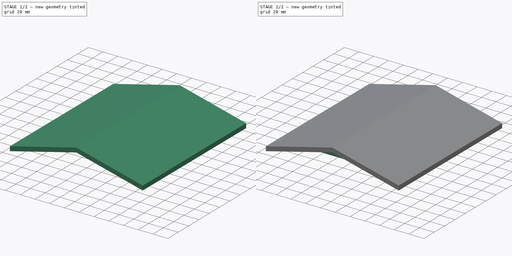
[diagram: build sequence overview — one tinted view per stage of 2, left to right]
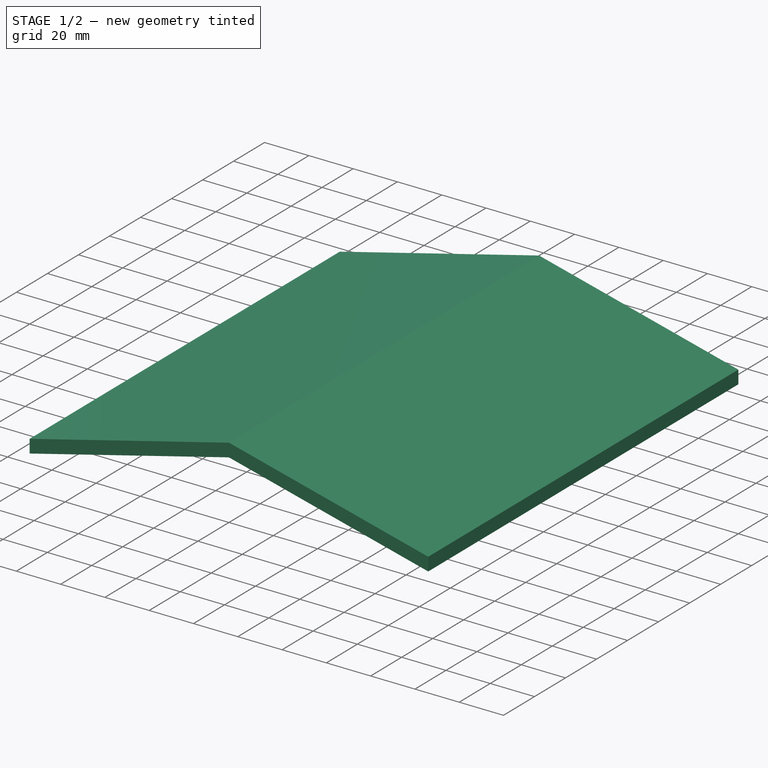
[diagram: stage 1 of 2 — iso view after this stage's code; geometry added in this stage tinted green]
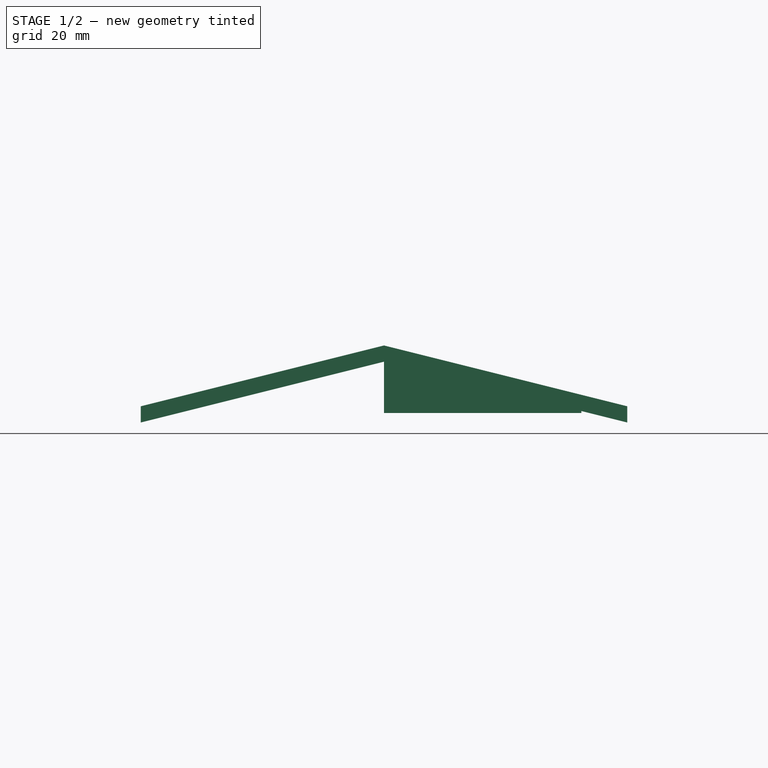
[diagram: stage 1 of 2 — front view after this stage's code; geometry added in this stage tinted green]
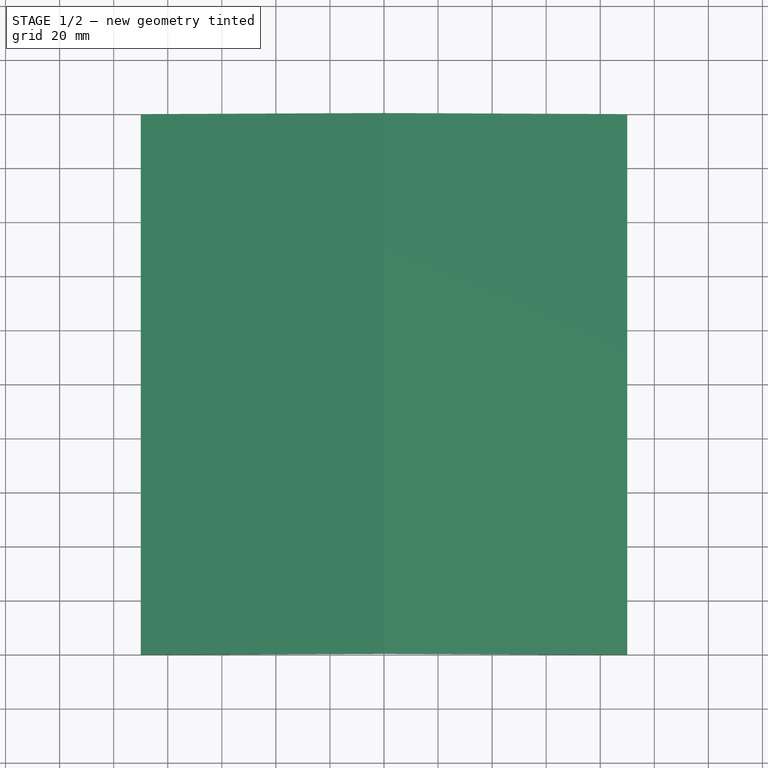
[diagram: stage 1 of 2 — top view after this stage's code; geometry added in this stage tinted green]
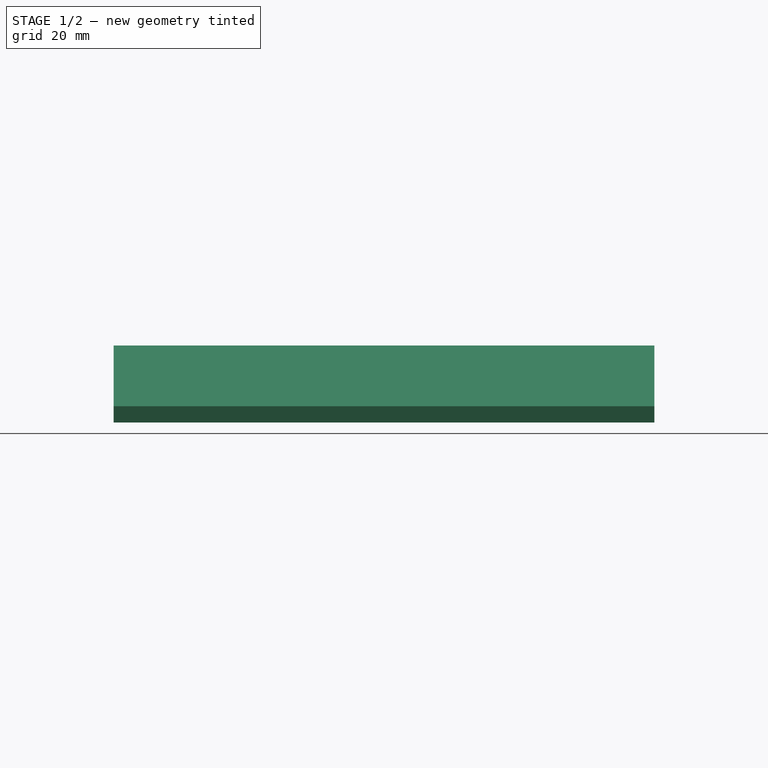
[diagram: stage 1 of 2 — right view after this stage's code; geometry added in this stage tinted green]
FCSTD DOCUMENT  (FreeCAD 0.20R29177 +426 (Git))
Label: roof
License: All rights reserved
LicenseURL: http://en.wikipedia.org/wiki/All_rights_reserved
objects: Sketcher::SketchObject×3, PartDesign::Pad×2, PartDesign::CoordinateSystem×2, PartDesign::Mirrored×1, PartDesign::Body×1, App::Part×1
note: 11 computed .brp shape members not serialized (recipe doc carries the construction recipe); baked Part::Feature solids carry a one-line shape summary decoded from their .brp

FEATURE [Sketcher::SketchObject] Sketch
  FullyConstrained = true
  MapMode = 5
  Support = -> [XY_Plane]
  sketch-geometry (12):
    g0: LineSegment StartX=-73 StartY=7 StartZ=0 EndX=73 EndY=7 EndZ=0
    g1: LineSegment StartX=73 StartY=7 StartZ=0 EndX=73 EndY=153 EndZ=0
    g2: LineSegment StartX=73 StartY=153 StartZ=0 EndX=-73 EndY=153 EndZ=0
    g3: LineSegment StartX=-73 StartY=153 StartZ=0 EndX=-73 EndY=7 EndZ=0
    g4: LineSegment StartX=-69 StartY=11 StartZ=0 EndX=69 EndY=11 EndZ=0
    g5: LineSegment StartX=69 StartY=11 StartZ=0 EndX=69 EndY=149 EndZ=0
    g6: LineSegment StartX=69 StartY=149 StartZ=0 EndX=-69 EndY=149 EndZ=0
    g7: LineSegment StartX=-69 StartY=149 StartZ=0 EndX=-69 EndY=11 EndZ=0
    g8: LineSegment StartX=-69 StartY=11 StartZ=0 EndX=-73 EndY=11 EndZ=0
    g9: LineSegment StartX=-69 StartY=11 StartZ=0 EndX=-69 EndY=7 EndZ=0
    g10: LineSegment StartX=69 StartY=149 StartZ=0 EndX=69 EndY=153 EndZ=0
    g11: LineSegment StartX=69 StartY=149 StartZ=0 EndX=73 EndY=149 EndZ=0
  constraints (35):
    c: Coincident(g0,g1)
    c: Coincident(g2,g3)
    c: Horizontal(g2)
    c: Vertical(g1)
    c: Vertical(g3)
    c: Coincident(g4,g5)
    c: Coincident(g5,g6)
    c: Coincident(g6,g7)
    c: Coincident(g7,g4)
    c: Horizontal(g4)
    c: Horizontal(g6)
    c: Vertical(g5)
    c: Vertical(g7)
    c: Coincident(g8,g4)
    c: Horizontal(g8)
    c: Coincident(g9,g4)
    c: PointOnObject(g9,g0)
    c: PointOnObject(g8,g3)
    c: Vertical(g9)
    c: Coincident(g10,g5)
    c: PointOnObject(g10,g2)
    c: Vertical(g10)
    c: Coincident(g11,g5)
    c: PointOnObject(g11,g1)
    c: Horizontal(g11)
    c: Equal(g11,g10)
    c: Equal(g10,g9)
    c: Equal(g9,g8)
    c: DistanceX(g11,g11) = 4
    c: DistanceX(g2,g2) = 146
    c: Equal(g2,g3)
    c: Coincident(g0,g3)
    c: Coincident(g1,g2)
    c: Symmetric(g0,g0,g-2)
    c: DistanceY(g-1,g0) = 7
FEATURE [Sketcher::SketchObject] Sketch001
  AttachmentOffset = pos=(0,0,20) rot=(0,0,1;0rad)
  FullyConstrained = true
  MapMode = 5
  Placement = pos=(0,-20,-4.4e-15) rot=(1,0,0;1.5708rad)
  Support = -> [XZ_Plane]
  sketch-geometry (6):
    g0: LineSegment StartX=0 StartY=25 StartZ=0 EndX=-90 EndY=2.50041 EndZ=0
    g1: LineSegment StartX=0 StartY=25 StartZ=0 EndX=90 EndY=2.50041 EndZ=0
    g2: LineSegment StartX=90 StartY=2.50041 StartZ=0 EndX=90 EndY=-3.49959 EndZ=0
    g3: LineSegment StartX=90 StartY=-3.49959 StartZ=0 EndX=0 EndY=19 EndZ=0
    g4: LineSegment StartX=0 StartY=19 StartZ=0 EndX=-90 EndY=-3.49959 EndZ=0
    g5: LineSegment StartX=-90 StartY=-3.49959 StartZ=0 EndX=-90 EndY=2.50041 EndZ=0
  constraints (17):
    c: PointOnObject(g0,g-2)
    c: Coincident(g1,g0)
    c: Coincident(g2,g1)
    c: Coincident(g3,g2)
    c: PointOnObject(g3,g-2)
    c: Coincident(g4,g3)
    c: Coincident(g5,g4)
    c: Coincident(g5,g0)
    c: Parallel(g4,g0)
    c: Parallel(g3,g1)
    c: Equal(g3,g1)
    c: Equal(g4,g0)
    c: Symmetric(g4,g2,g-2)
    c: DistanceX(g4,g2) = 180
    c: DistanceY(g2,g2) = 6
    c: Angle(g-1,g0) = 0.244974
    c: DistanceY(g-1,g3) = 19
FEATURE [PartDesign::Pad] Pad
  Direction = (0,-1,2e-16)
  Length = 200
  Length2 = 10
  Placement = pos=(0,0,0) rot=(1,0,0;1.5708rad)
  Profile = -> Sketch001
  ReferenceAxis = -> Sketch001 [N_Axis]
  Reversed = true
  Type = 0
FEATURE [Sketcher::SketchObject] Sketch002
  FullyConstrained = true
  MapMode = 5
  Support = -> [XY_Plane]
  sketch-geometry (9):
    g0: LineSegment StartX=0 StartY=7 StartZ=0 EndX=73 EndY=7 EndZ=0
    g1: LineSegment StartX=73 StartY=7 StartZ=0 EndX=73 EndY=153 EndZ=0
    g2: LineSegment StartX=73 StartY=153 StartZ=0 EndX=0 EndY=153 EndZ=0
    g3: LineSegment StartX=0 StartY=11 StartZ=0 EndX=69 EndY=11 EndZ=0
    g4: LineSegment StartX=69 StartY=11 StartZ=0 EndX=69 EndY=149 EndZ=0
    g5: LineSegment StartX=69 StartY=149 StartZ=0 EndX=0 EndY=149 EndZ=0
    g6: LineSegment StartX=69 StartY=149 StartZ=0 EndX=73 EndY=149 EndZ=0
    g7: LineSegment StartX=0 StartY=149 StartZ=0 EndX=0 EndY=153 EndZ=0
    g8: LineSegment StartX=0 StartY=11 StartZ=0 EndX=0 EndY=7 EndZ=0
  constraints (27):
    c: Coincident(g0,g1)
    c: Horizontal(g2)
    c: Vertical(g1)
    c: Coincident(g3,g4)
    c: Coincident(g4,g5)
    c: Horizontal(g3)
    c: Horizontal(g5)
    c: Vertical(g4)
    c: Coincident(g6,g4)
    c: PointOnObject(g6,g1)
    c: Horizontal(g6)
    c: Coincident(g1,g2)
    c: Coincident(g7,g5)
    c: Coincident(g7,g2)
    c: Coincident(g8,g3)
    c: Coincident(g8,g0)
    c: Vertical(g8)
    c: Vertical(g7)
    c: Vertical(g7,g3)
    c: Equal(g6,g7)
    c: Equal(g7,g8)
    c: DistanceX(g6,g6) = 4
    c: DistanceY(g-1,g0) = 7
    c: PointOnObject(g0,g-2)
    c: DistanceX(g2,g2) = 73
    c: Horizontal(g0)
    c: DistanceY(g1,g1) = 146
FEATURE [PartDesign::Pad] Pad001
  BaseFeature = -> Pad
  Direction = (0,0,1)
  Length = 10
  Length2 = 10
  Placement = pos=(0,0,0) rot=(1,0,0;1.5708rad)
  Profile = -> Sketch002
  ReferenceAxis = -> Sketch002 [N_Axis]
  Type = 2
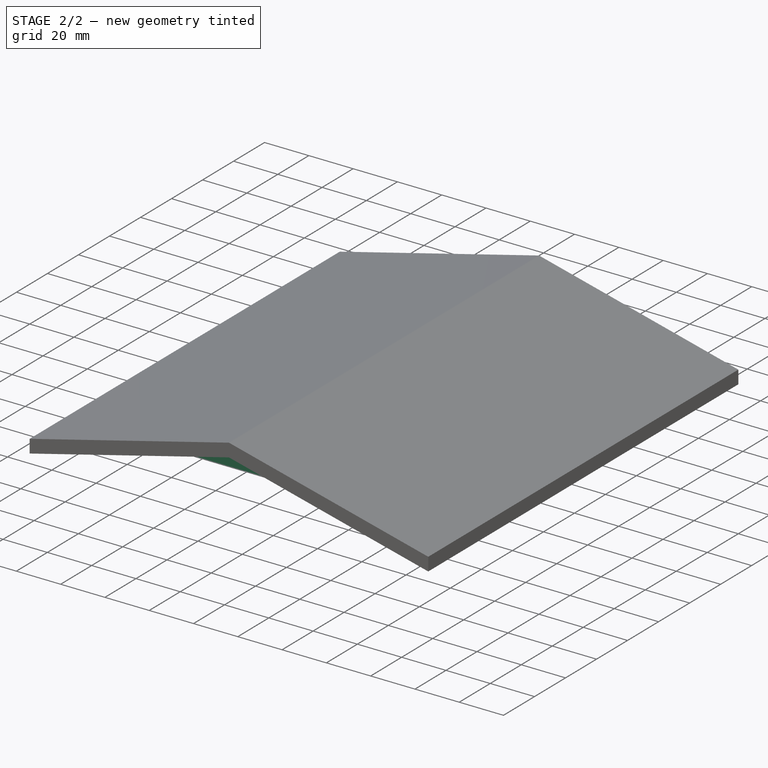
[diagram: stage 2 of 2 — iso view after this stage's code; geometry added in this stage tinted green]
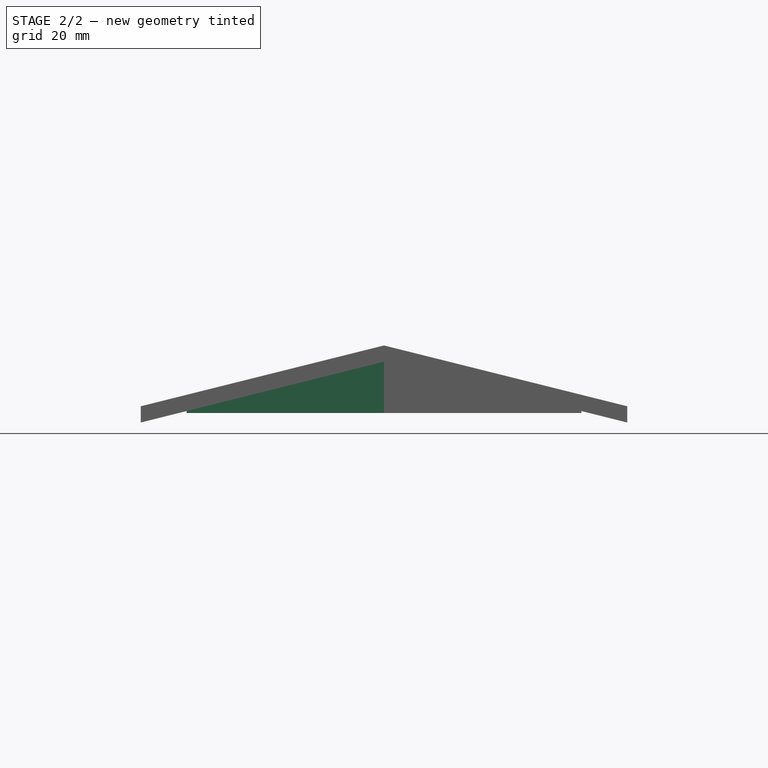
[diagram: stage 2 of 2 — front view after this stage's code; geometry added in this stage tinted green]
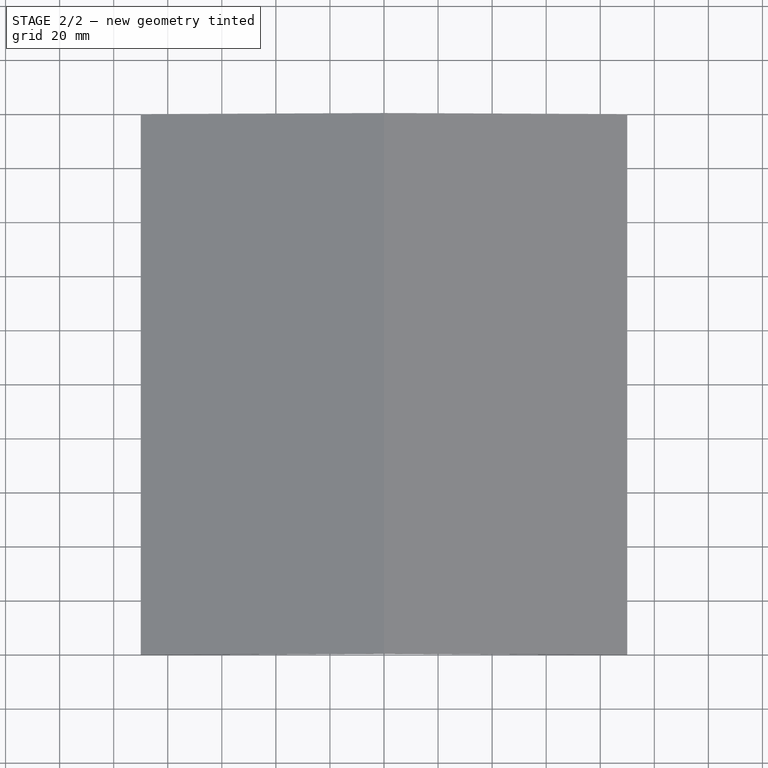
[diagram: stage 2 of 2 — top view after this stage's code; geometry added in this stage tinted green]
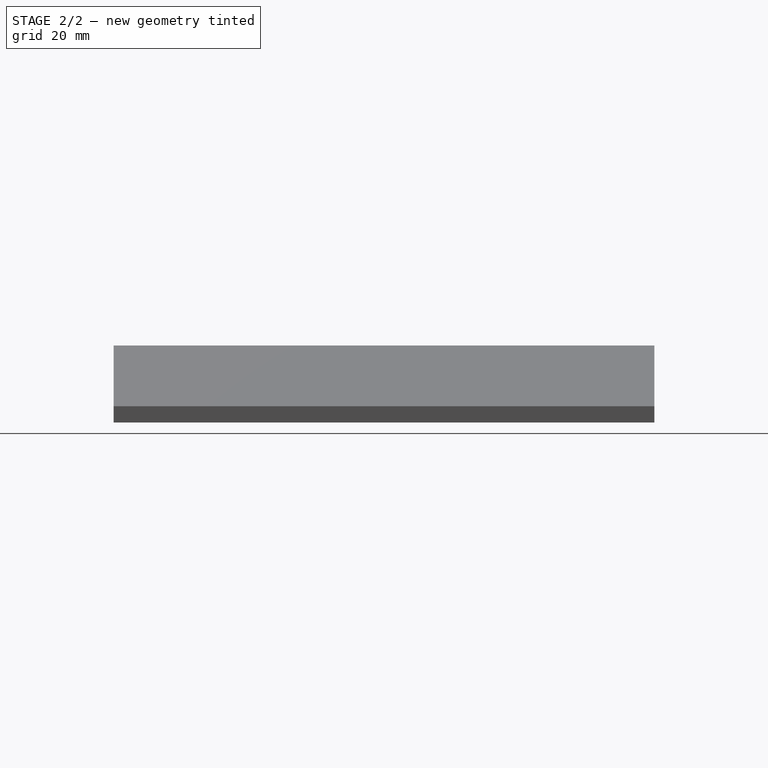
[diagram: stage 2 of 2 — right view after this stage's code; geometry added in this stage tinted green]
FEATURE [PartDesign::Mirrored] Mirrored
  BaseFeature = -> Pad001
  MirrorPlane = -> Sketch002 [V_Axis]
  Originals = -> [Pad001]
  Placement = pos=(0,0,0) rot=(1,0,0;1.5708rad)
FEATURE [PartDesign::Body] Body
  Group = -> [Sketch,Sketch001,Pad,Sketch002,Pad001,Mirrored]
  Origin = -> Origin
  Tip = -> Mirrored
FEATURE [PartDesign::CoordinateSystem] LCS_0
  AttacherType = Attacher::AttachEngine3D
  MapMode = 2
  Support = -> [X_Axis001]
FEATURE [PartDesign::CoordinateSystem] LCS_1
  AttacherType = Attacher::AttachEngine3D
  MapMode = 1
  Placement = pos=(0,7,19) rot=(0,0,1;0rad)
  Support = -> [Mirrored]
FEATURE [App::Part] roof
  Group = -> [LCS_0,Body,LCS_1]
  Origin = -> Origin001
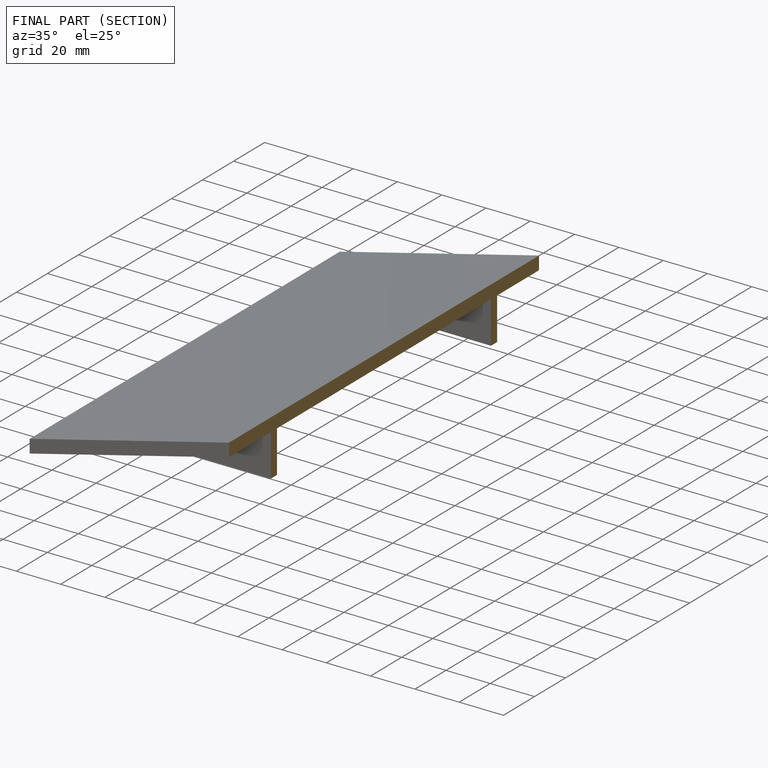
[diagram: finished part — half-section view (interior)]
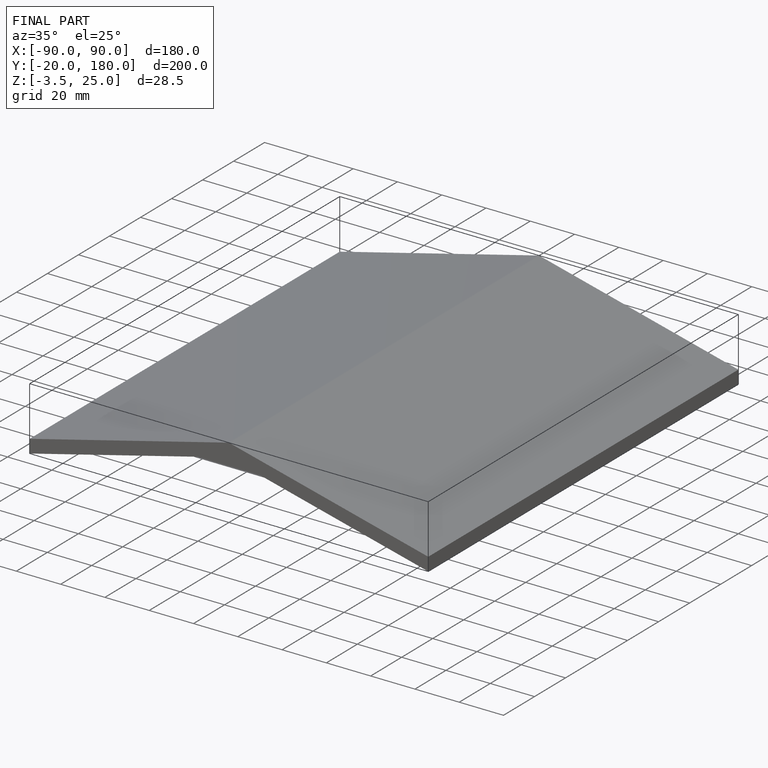
[diagram: finished part — iso view with bounding-box wireframe]
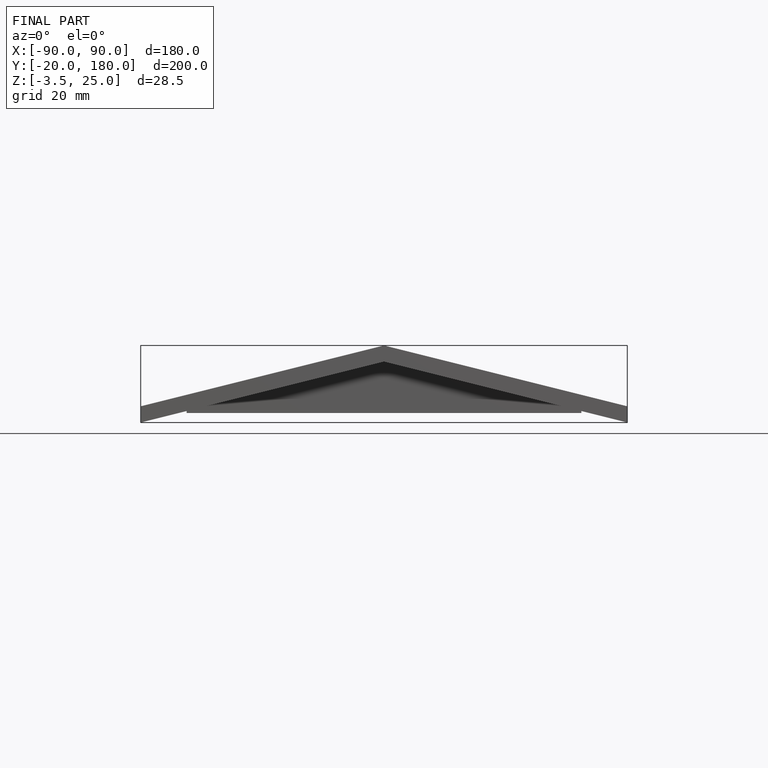
[diagram: finished part — front view with bounding-box wireframe]
